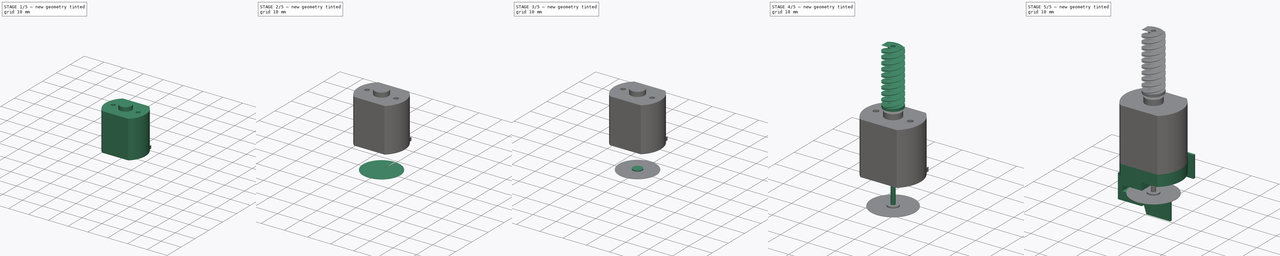
[diagram: build sequence overview — one tinted view per stage of 5, left to right]
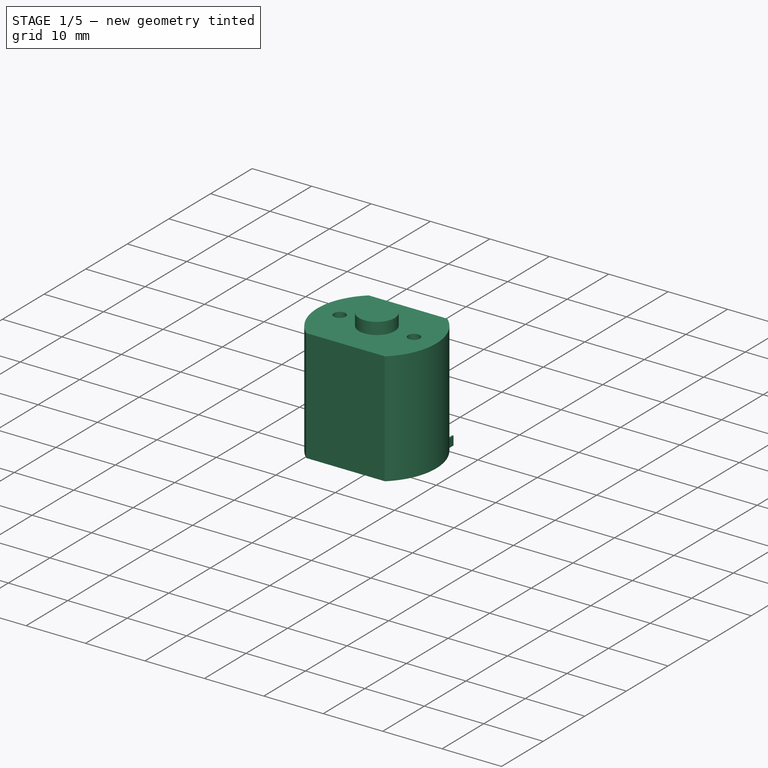
[diagram: stage 1 of 5 — iso view after this stage's code; geometry added in this stage tinted green]
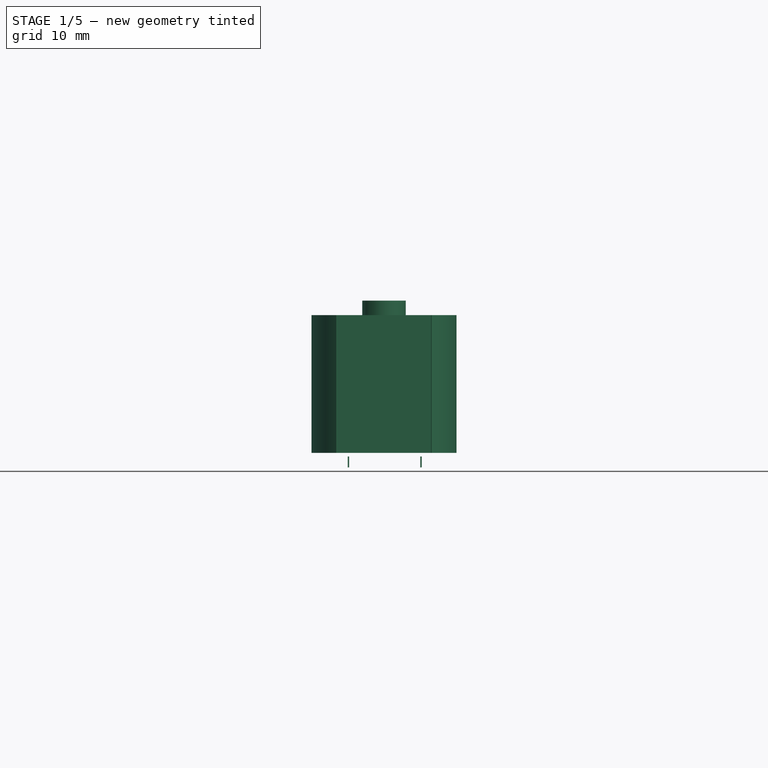
[diagram: stage 1 of 5 — front view after this stage's code; geometry added in this stage tinted green]
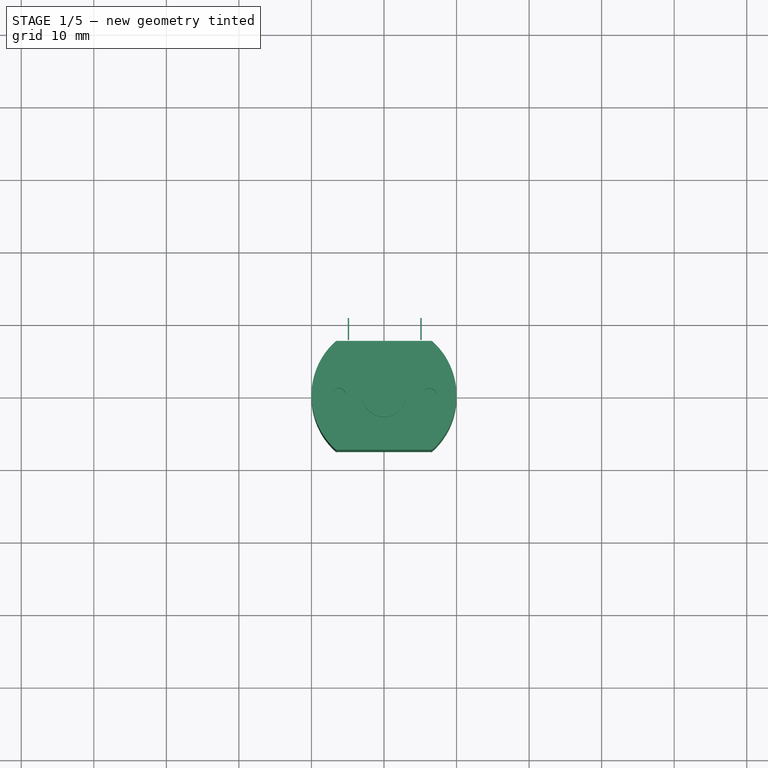
[diagram: stage 1 of 5 — top view after this stage's code; geometry added in this stage tinted green]
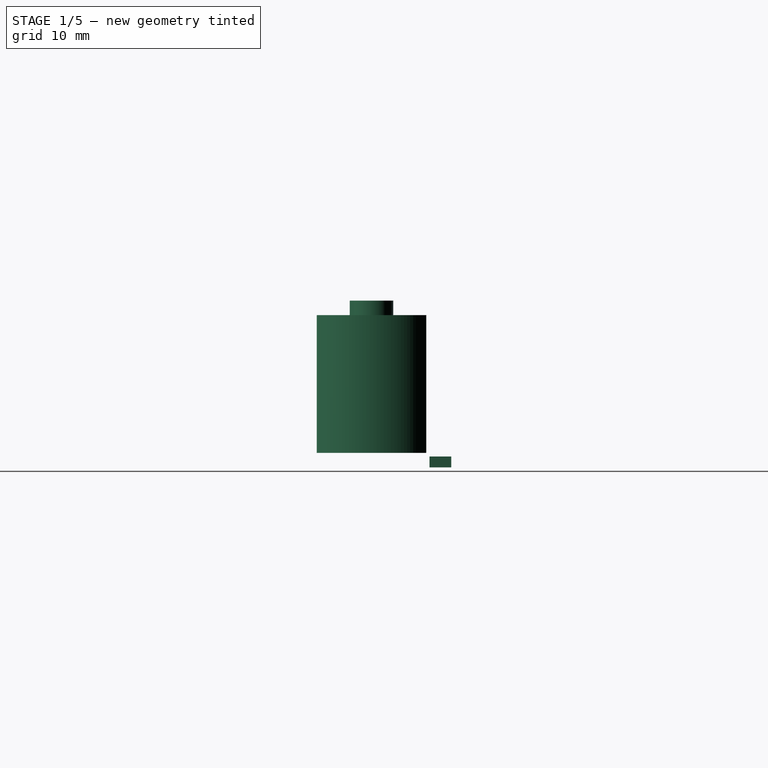
[diagram: stage 1 of 5 — right view after this stage's code; geometry added in this stage tinted green]
FCSTD DOCUMENT  (FreeCAD 0.15R4671 (Git))
Label: DCMotorMabuchi14EncoderFull
License: CreativeCommons Attribution-NonCommercial
LicenseURL: http://creativecommons.org/licenses/by-nc/4.0/
objects: Sketcher::SketchObject×4, Part::Cylinder×4, Part::Feature×3, Part::Compound×3, PartDesign::Pad×2, Part::Box×2, PartDesign::Pocket×2, Part::Cut×1, PartDesign::PolarPattern×1
note: 26 computed .brp shape members not serialized (recipe doc carries the construction recipe); baked Part::Feature solids carry a one-line shape summary decoded from their .brp

FEATURE [Part::Box] Box  label="MotorPinA"
  Height = 1.5
  Length = 0.2
  Placement = pos=(5,8,6) rot=(0,0,1;0rad)
  Width = 3
FEATURE [Part::Feature] Fusion  label="MotorBodyPlastic"
  shape: bbox 20 x 16.05 x 6 mm, 27 faces (baked)
FEATURE [Part::Feature] Fusion_solid001  label="Fusion (Solid)001"
  shape: bbox 10.12 x 11.2 x 20 mm, 30 faces (baked)
FEATURE [Part::Box] Box001  label="MotorPinB"
  Height = 1.5
  Length = 0.2
  Placement = pos=(-5,8,6) rot=(0,0,1;0rad)
  Width = 3
FEATURE [Sketcher::SketchObject] Sketch003
  Placement = pos=(0,0,27) rot=(0,0,1;0rad)
  Support = -> Fusion_solid [Face3]
  sketch-geometry (2):
    g0: Circle CenterX=-6.25 CenterY=0 CenterZ=0 NormalX=0 NormalY=0 NormalZ=1 Radius=1
    g1: Circle CenterX=6.25 CenterY=0 CenterZ=0 NormalX=0 NormalY=0 NormalZ=1 Radius=1
  constraints (6):
    c: PointOnObject(g0,g-1)
    c: DistanceX(g-1,g0) = -6.25
    c: PointOnObject(g1,g-1)
    c: DistanceX(g-1,g1) = 6.25
    c: Radius(g0) = 1
    c: Radius(g1) = 1
FEATURE [PartDesign::Pocket] Pocket001
  Length = 3
  Sketch = -> Sketch003
  Type = 0
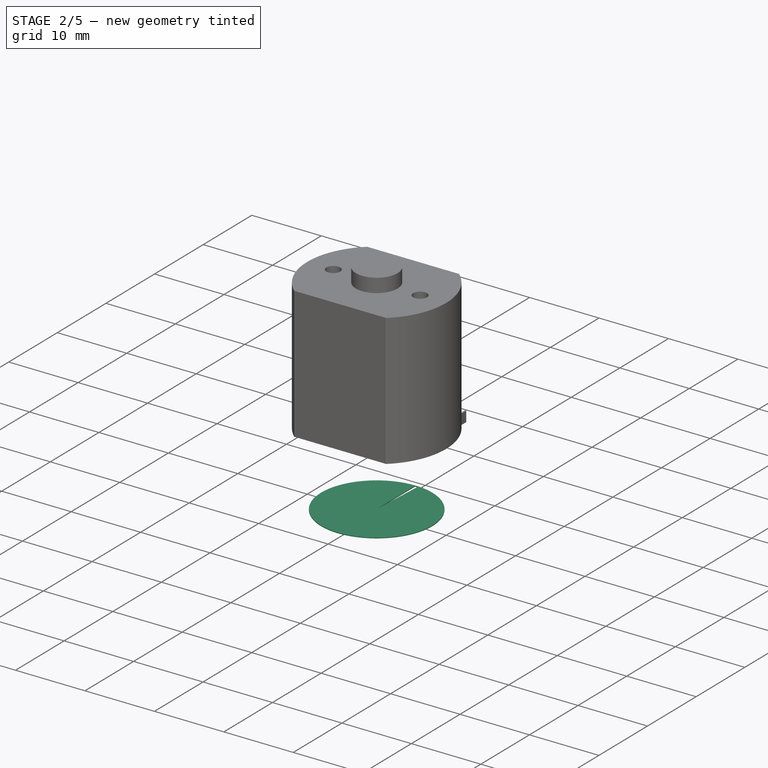
[diagram: stage 2 of 5 — iso view after this stage's code; geometry added in this stage tinted green]
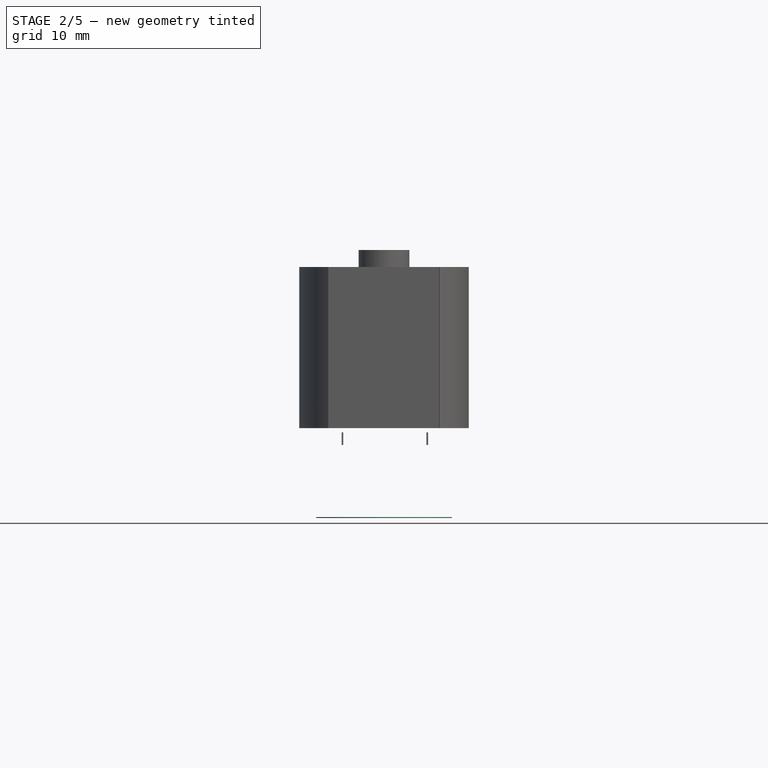
[diagram: stage 2 of 5 — front view after this stage's code; geometry added in this stage tinted green]
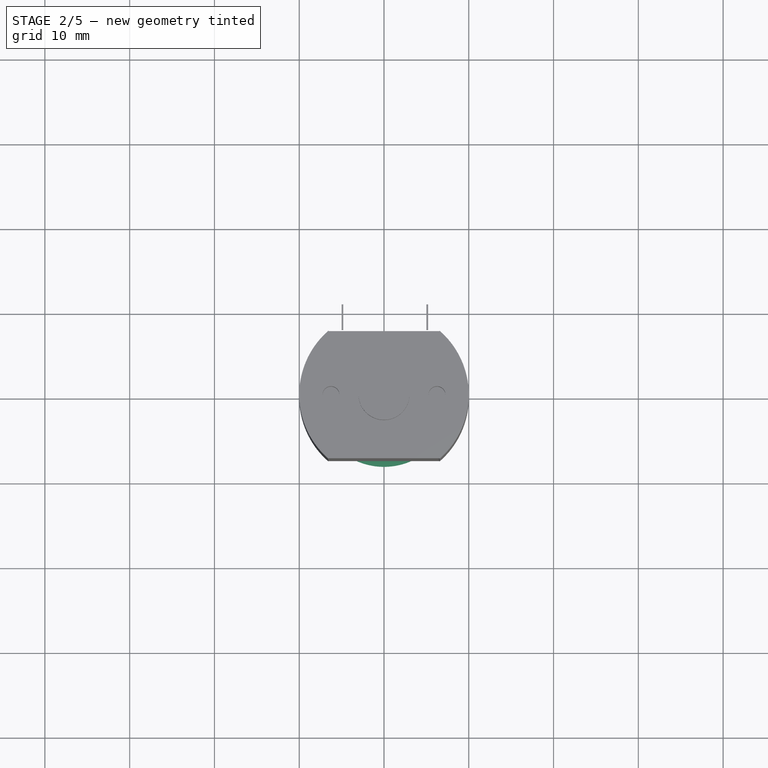
[diagram: stage 2 of 5 — top view after this stage's code; geometry added in this stage tinted green]
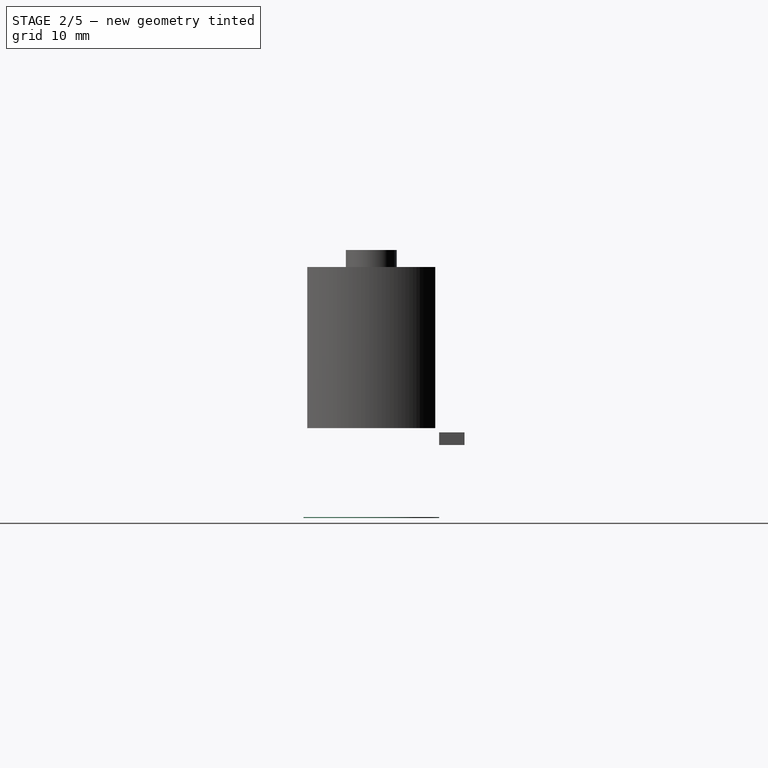
[diagram: stage 2 of 5 — right view after this stage's code; geometry added in this stage tinted green]
FEATURE [Part::Cylinder] Cylinder003  label="EncoderDisk"
  Angle = 360
  Height = 0.1
  Placement = pos=(0,0,-2.6) rot=(0,0,1;0rad)
  Radius = 8
FEATURE [Sketcher::SketchObject] Sketch002
  Placement = pos=(0,0,-2.5) rot=(0,0,1;0rad)
  Support = -> Cylinder003 [Face2]
  sketch-geometry (3):
    g0: ArcOfCircle CenterX=0 CenterY=0 CenterZ=0 NormalX=0 NormalY=0 NormalZ=1 Radius=7.9 StartAngle=1.51844 EndAngle=1.5708
    g1: LineSegment StartX=0 StartY=7.9 StartZ=0 EndX=0 EndY=0 EndZ=0
    g2: LineSegment StartX=0.413454 StartY=7.88917 StartZ=0 EndX=0 EndY=0 EndZ=0
  constraints (8):
    c: Coincident(g0,g-1)
    c: Coincident(g1,g0)
    c: Coincident(g1,g-1)
    c: Coincident(g2,g0)
    c: Coincident(g2,g-1)
    c: Angle(g1) = -1.5708
    c: Angle(g2) = -1.62316
    c: Radius(g0) = 7.9
FEATURE [PartDesign::Pocket] Pocket
  Length = 5
  Placement = pos=(0,0,-2.6) rot=(0,0,1;0rad)
  Sketch = -> Sketch002
  Type = 1
FEATURE [Part::Compound] Compound001  label="Connector"
  Links = -> [Box,Box001]
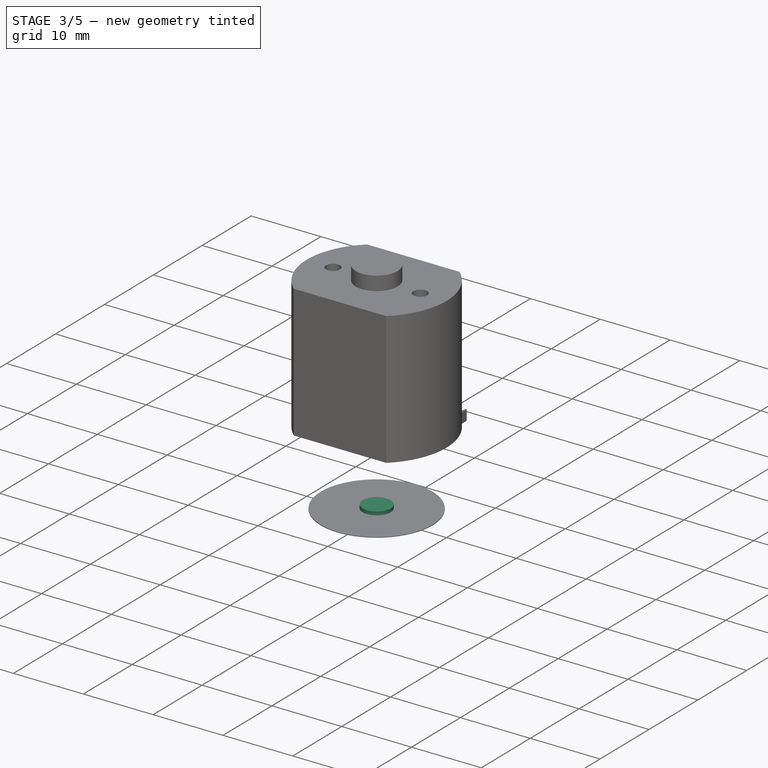
[diagram: stage 3 of 5 — iso view after this stage's code; geometry added in this stage tinted green]
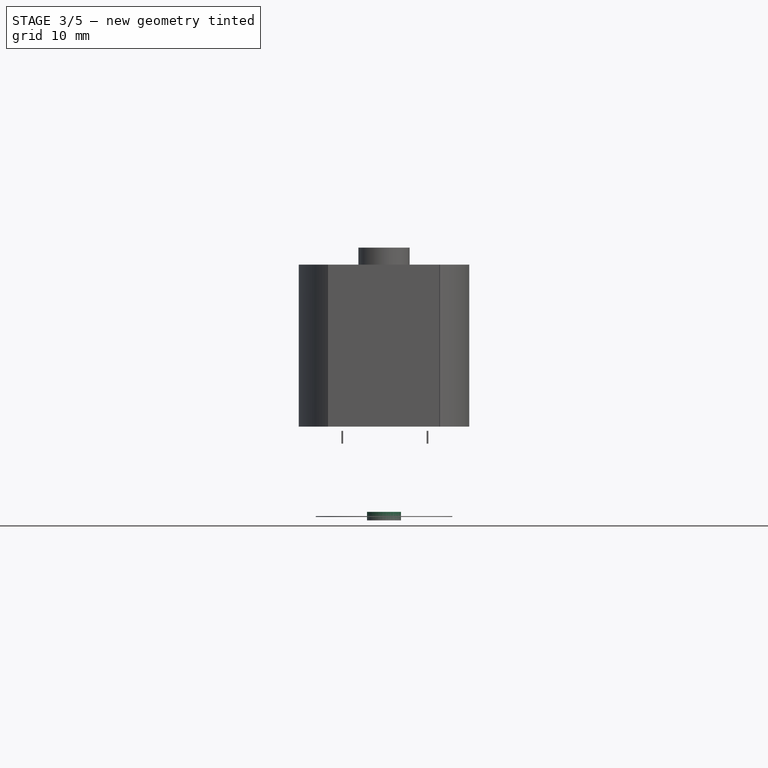
[diagram: stage 3 of 5 — front view after this stage's code; geometry added in this stage tinted green]
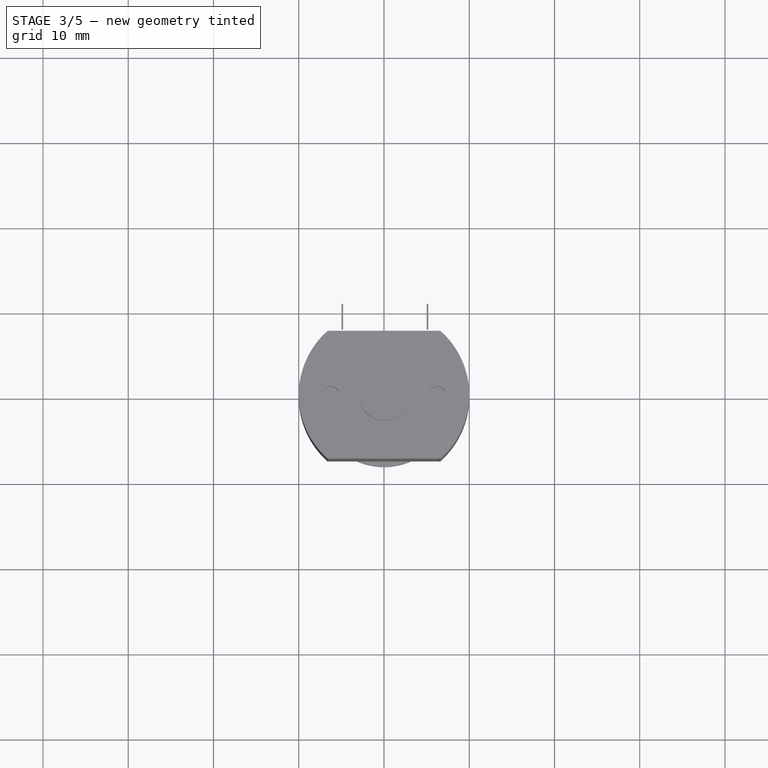
[diagram: stage 3 of 5 — top view after this stage's code; geometry added in this stage tinted green]
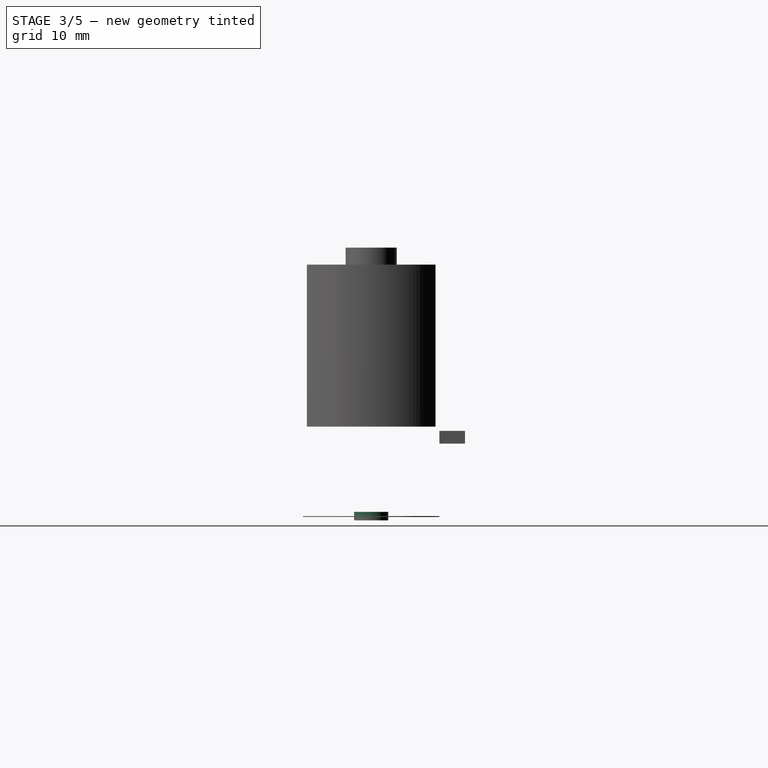
[diagram: stage 3 of 5 — right view after this stage's code; geometry added in this stage tinted green]
FEATURE [Part::Cylinder] Cylinder002  label="EncoderBrass"
  Angle = 360
  Height = 1
  Placement = pos=(0,0,-3) rot=(0,0,1;0rad)
  Radius = 2
FEATURE [PartDesign::PolarPattern] PolarPattern
  Angle = 360
  Axis = -> Sketch002 [N_Axis]
  Occurrences = 32
  Originals = -> [Pocket]
  Placement = pos=(0,0,-2.6) rot=(0,0,1;0rad)
FEATURE [Part::Compound] Compound  label="CodeWheel"
  Links = -> [Cylinder002,Cylinder003,Pocket,PolarPattern]
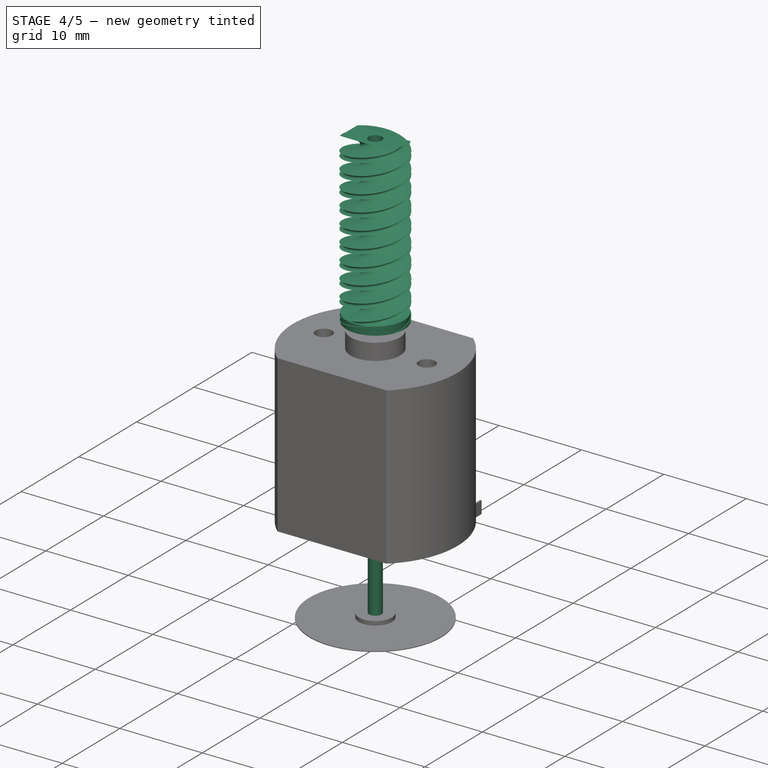
[diagram: stage 4 of 5 — iso view after this stage's code; geometry added in this stage tinted green]
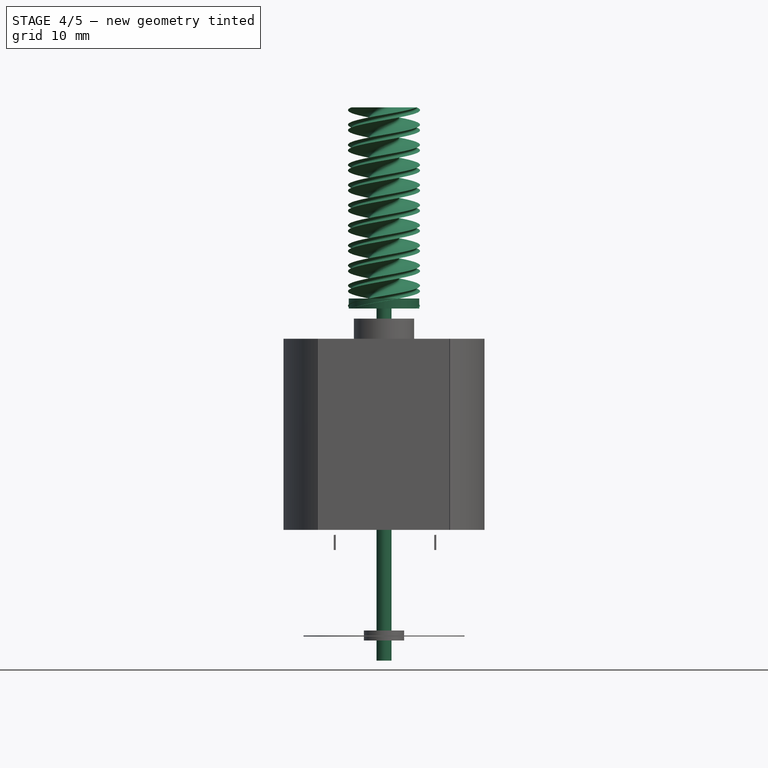
[diagram: stage 4 of 5 — front view after this stage's code; geometry added in this stage tinted green]
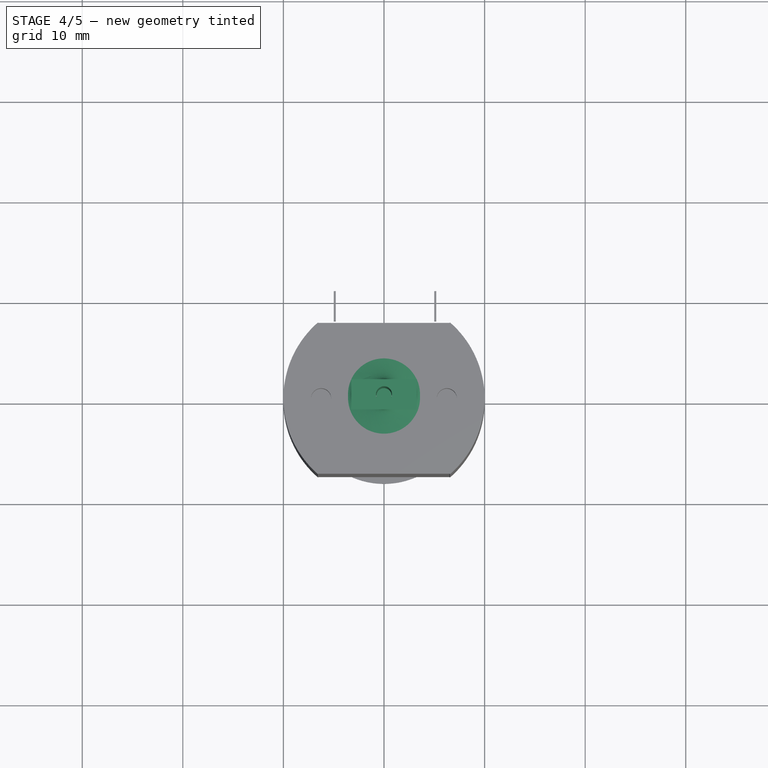
[diagram: stage 4 of 5 — top view after this stage's code; geometry added in this stage tinted green]
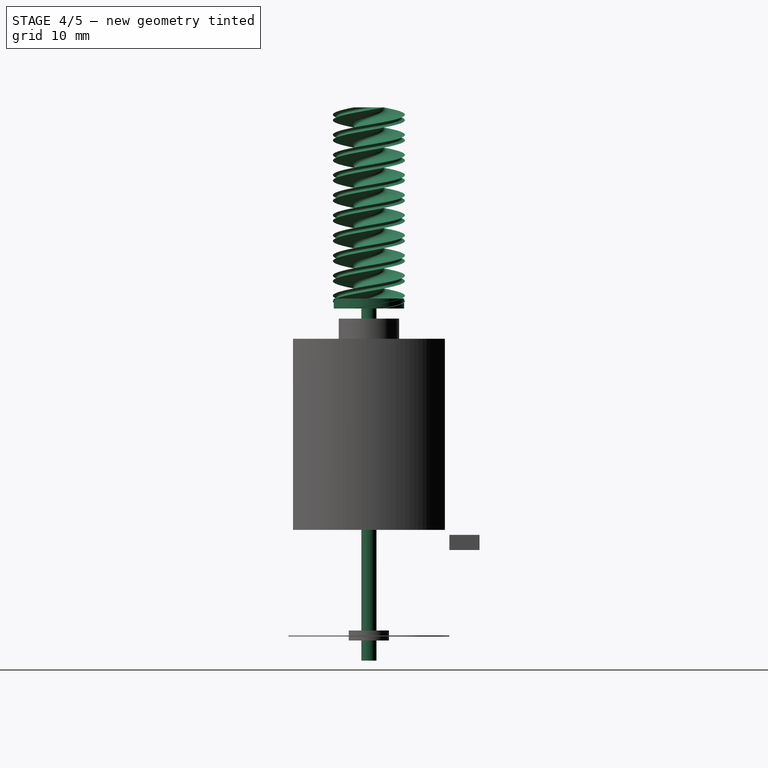
[diagram: stage 4 of 5 — right view after this stage's code; geometry added in this stage tinted green]
FEATURE [Part::Feature] Fusion_solid  label="MotorBodyMetal"
  shape: bbox 20 x 15.09 x 21 mm, 16 faces (baked)
FEATURE [Part::Cylinder] Cylinder  label="MotorAxisShaft"
  Angle = 360
  Height = 47
  Placement = pos=(0,0,-5) rot=(0,0,1;0rad)
  Radius = 0.75
FEATURE [Part::Cylinder] Cylinder001  label="AxisHole"
  Angle = 360
  Height = 23
  Placement = pos=(0,0,-1) rot=(0,0,1;0rad)
  Radius = 0.8
FEATURE [Part::Cut] Cut  label="WormPlastic"
  Base = -> Fusion_solid001
  Placement = pos=(0,0,30) rot=(0,0,1;0rad)
  Tool = -> Cylinder001
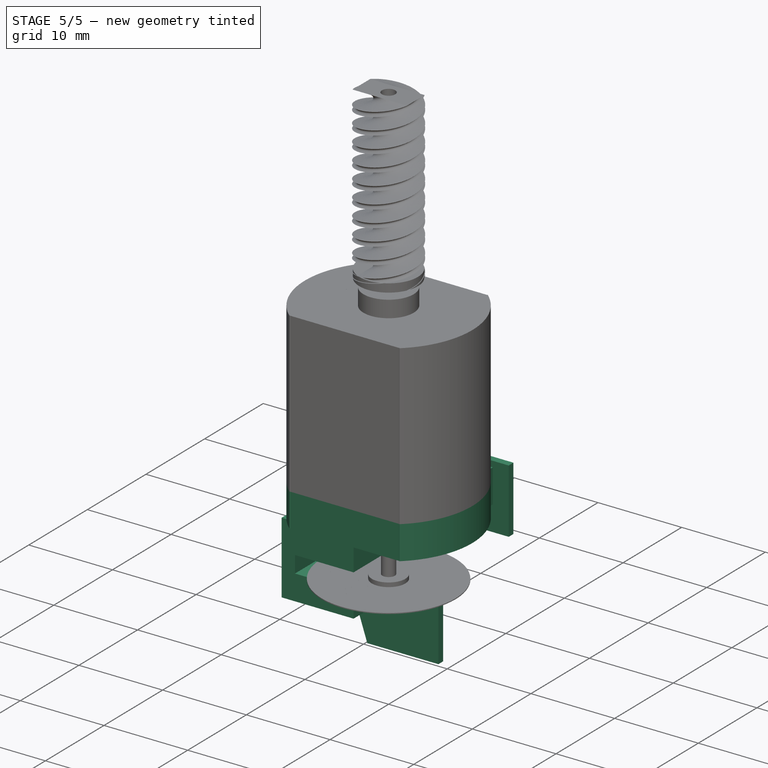
[diagram: stage 5 of 5 — iso view after this stage's code; geometry added in this stage tinted green]
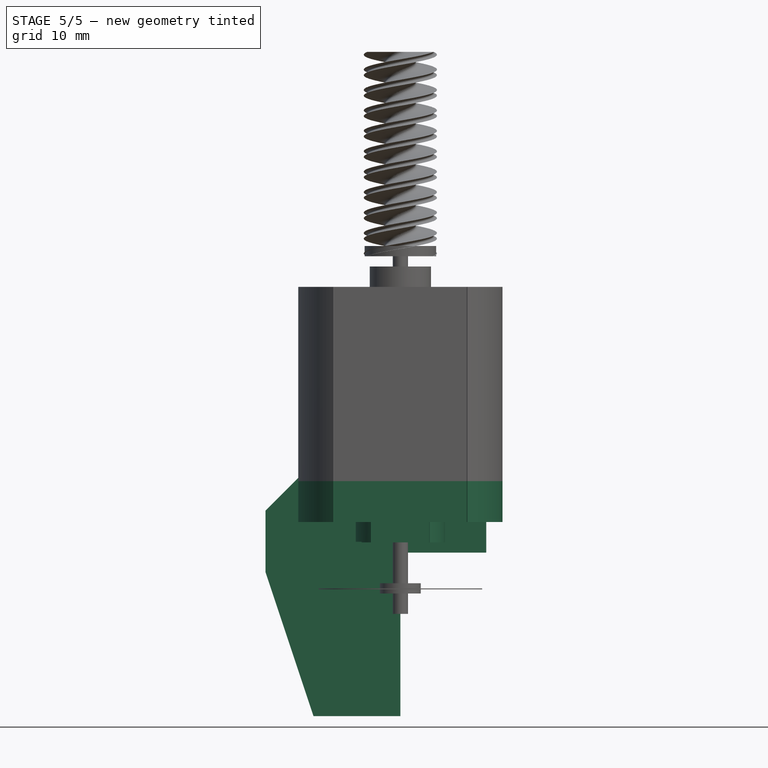
[diagram: stage 5 of 5 — front view after this stage's code; geometry added in this stage tinted green]
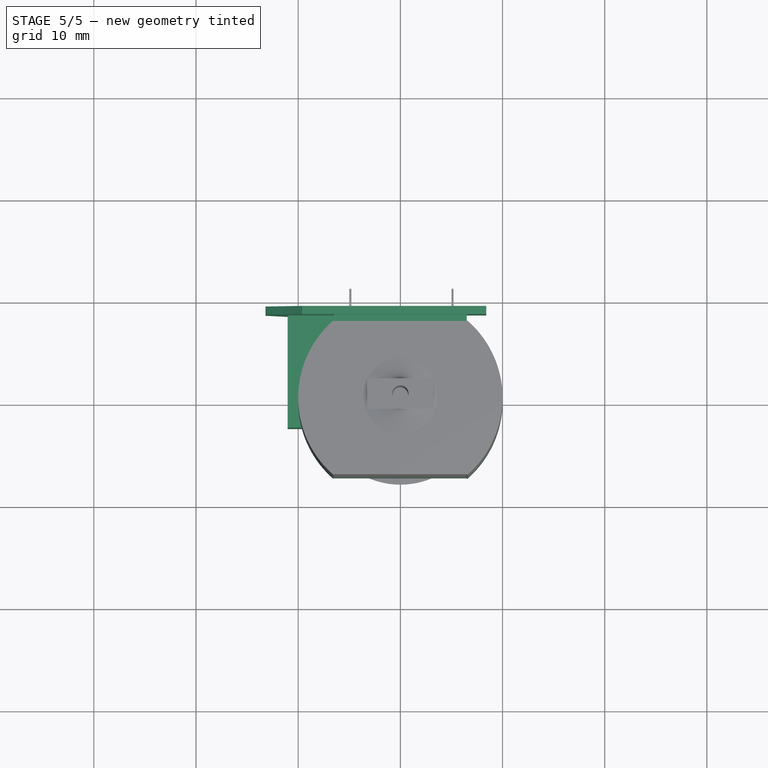
[diagram: stage 5 of 5 — top view after this stage's code; geometry added in this stage tinted green]
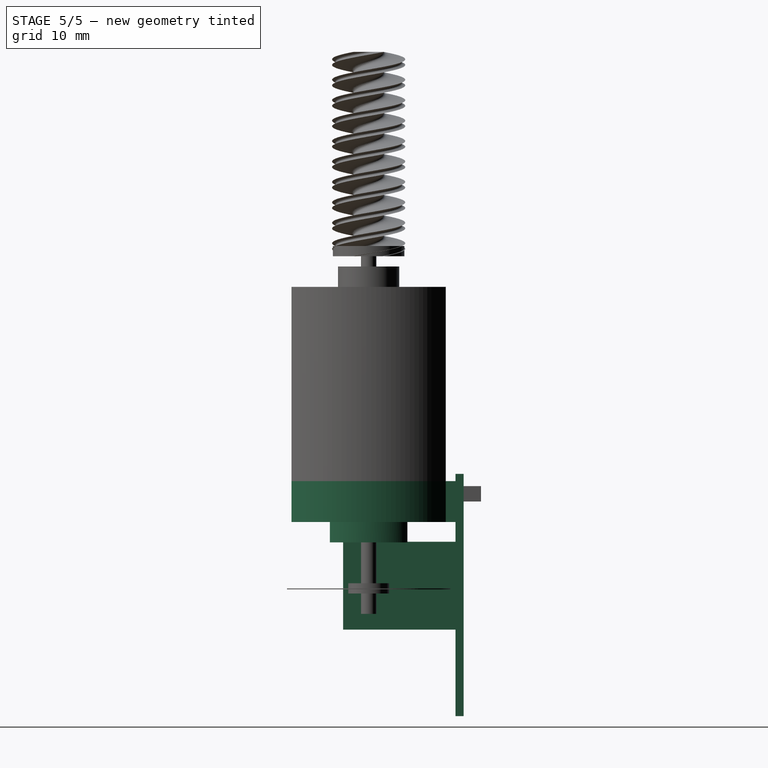
[diagram: stage 5 of 5 — right view after this stage's code; geometry added in this stage tinted green]
FEATURE [Sketcher::SketchObject] Sketch
  Placement = pos=(0,9.3,-15) rot=(1,0,0;1.5708rad)
  sketch-geometry (9):
    g0: LineSegment StartX=0 StartY=0 StartZ=0 EndX=0 EndY=16 EndZ=0
    g1: LineSegment StartX=0 StartY=16 StartZ=0 EndX=8.4 EndY=16 EndZ=0
    g2: LineSegment StartX=8.4 StartY=16 StartZ=0 EndX=8.4 EndY=23.7 EndZ=0
    g3: LineSegment StartX=8.4 StartY=23.7 StartZ=0 EndX=-9.6 EndY=23.7 EndZ=0
    g4: LineSegment StartX=-9.6 StartY=23.7 StartZ=0 EndX=-13.2 EndY=20.1 EndZ=0
    g5: LineSegment StartX=-13.2 StartY=20.1 StartZ=0 EndX=-13.2 EndY=14.1 EndZ=0
    g6: LineSegment StartX=-13.2 StartY=14.1 StartZ=0 EndX=-8.5 EndY=0 EndZ=0
    g7: LineSegment StartX=-8.5 StartY=0 StartZ=0 EndX=0 EndY=0 EndZ=0
    g8: LineSegment StartX=0 StartY=0 StartZ=0 EndX=0 EndY=0 EndZ=0
  constraints (24):
    c: Coincident(g0,g1)
    c: Coincident(g1,g2)
    c: Coincident(g2,g3)
    c: Coincident(g3,g4)
    c: Coincident(g4,g5)
    c: Coincident(g5,g6)
    c: Coincident(g6,g7)
    c: Coincident(g7,g-1)
    c: Coincident(g7,g8)
    c: Coincident(g8,g-1)
    c: Horizontal(g7)
    c: Horizontal(g3)
    c: Vertical(g2)
    c: Horizontal(g1)
    c: Vertical(g0)
    c: DistanceY(g0) = 16
    c: DistanceY(g2) = 7.7
    c: DistanceX(g1) = 8.4
    c: DistanceX(g3) = -18
    c: Vertical(g5)
    c: DistanceX(g7) = 8.5
    c: Coincident(g0,g8)
    c: DistanceY(g5) = -6
    c: Angle(g4) = -2.35619
FEATURE [Sketcher::SketchObject] Sketch001
  Placement = pos=(2,8.5,-18) rot=(1,0,0;1.5708rad)
  sketch-geometry (8):
    g0: LineSegment StartX=-13.0345 StartY=20.0658 StartZ=0 EndX=-4.43446 EndY=20.0658 EndZ=0
    g1: LineSegment StartX=-4.43446 StartY=20.0658 StartZ=0 EndX=-4.43446 EndY=16.4658 EndZ=0
    g2: LineSegment StartX=-4.43446 StartY=16.4658 StartZ=0 EndX=-11.4345 EndY=16.4658 EndZ=0
    g3: LineSegment StartX=-11.4345 StartY=16.4658 StartZ=0 EndX=-11.4345 EndY=14.4658 EndZ=0
    g4: LineSegment StartX=-11.4345 StartY=14.4658 StartZ=0 EndX=-4.43446 EndY=14.4658 EndZ=0
    g5: LineSegment StartX=-4.43446 StartY=14.4658 StartZ=0 EndX=-4.43446 EndY=11.4658 EndZ=0
    g6: LineSegment StartX=-4.43446 StartY=11.4658 StartZ=0 EndX=-13.0345 EndY=11.4658 EndZ=0
    g7: LineSegment StartX=-13.0345 StartY=11.4658 StartZ=0 EndX=-13.0345 EndY=20.0658 EndZ=0
  constraints (23):
    c: Coincident(g0,g1)
    c: Coincident(g1,g2)
    c: Coincident(g2,g3)
    c: Coincident(g3,g4)
    c: Coincident(g4,g5)
    c: Coincident(g5,g6)
    c: Coincident(g6,g7)
    c: Coincident(g0,g7)
    c: Horizontal(g0)
    c: Vertical(g7)
    c: Vertical(g1)
    c: Vertical(g5)
    c: Horizontal(g6)
    c: Vertical(g3)
    c: Horizontal(g4)
    c: Horizontal(g2)
    c: DistanceY(g7) = 8.6
    c: DistanceX(g6) = -8.6
    c: Equal(g0,g6)
    c: DistanceY(g3) = -2
    c: DistanceX(g2) = -7
    c: Equal(g2,g4)
    c: DistanceY(g1) = -3.6
FEATURE [PartDesign::Pad] Pad  label="Circuit"
  Length = 0.8
  Length2 = 100
  Placement = pos=(0,9.3,-15) rot=(1,0,0;1.5708rad)
  Sketch = -> Sketch
  Type = 0
FEATURE [PartDesign::Pad] Pad001  label="IRSensor"
  Length = 11
  Length2 = 100
  Placement = pos=(2,8.5,-18) rot=(1,0,0;1.5708rad)
  Sketch = -> Sketch001
  Type = 0
FEATURE [Part::Compound] Compound002  label="Motor"
  Links = -> [Compound001,Compound,Cut,Fusion,Cylinder,Fusion_solid]
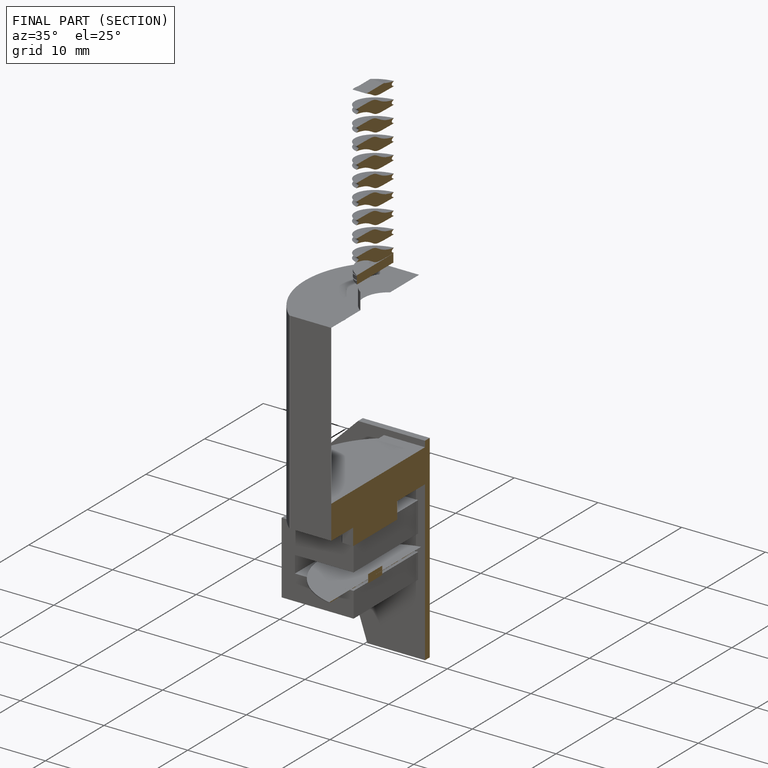
[diagram: finished part — half-section view (interior)]
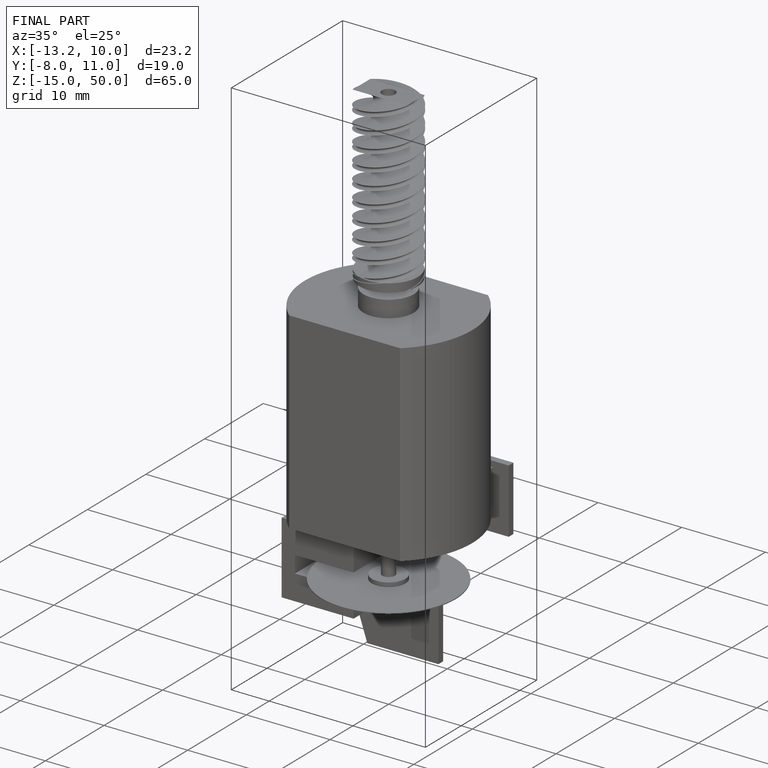
[diagram: finished part — iso view with bounding-box wireframe]
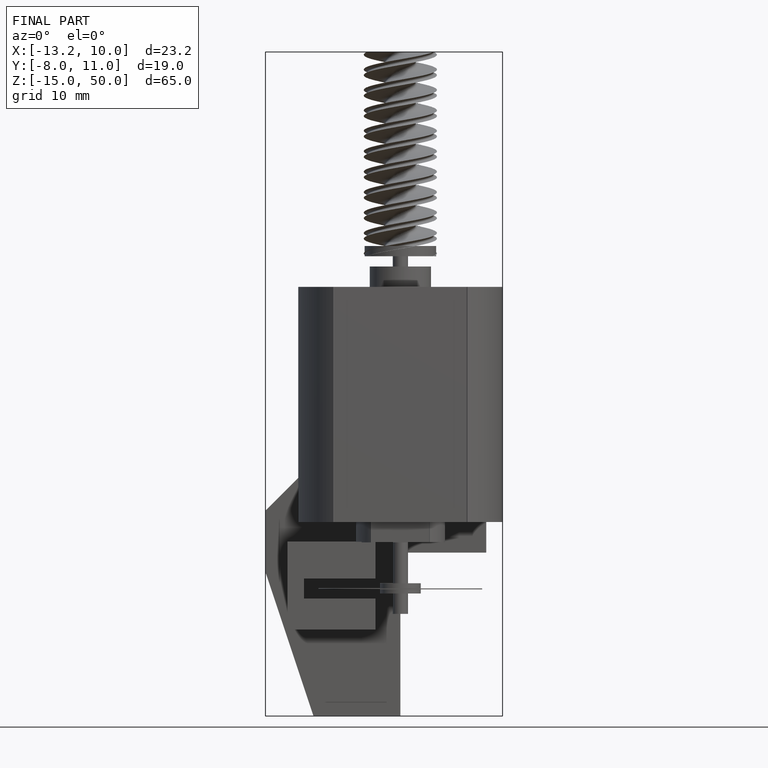
[diagram: finished part — front view with bounding-box wireframe]
